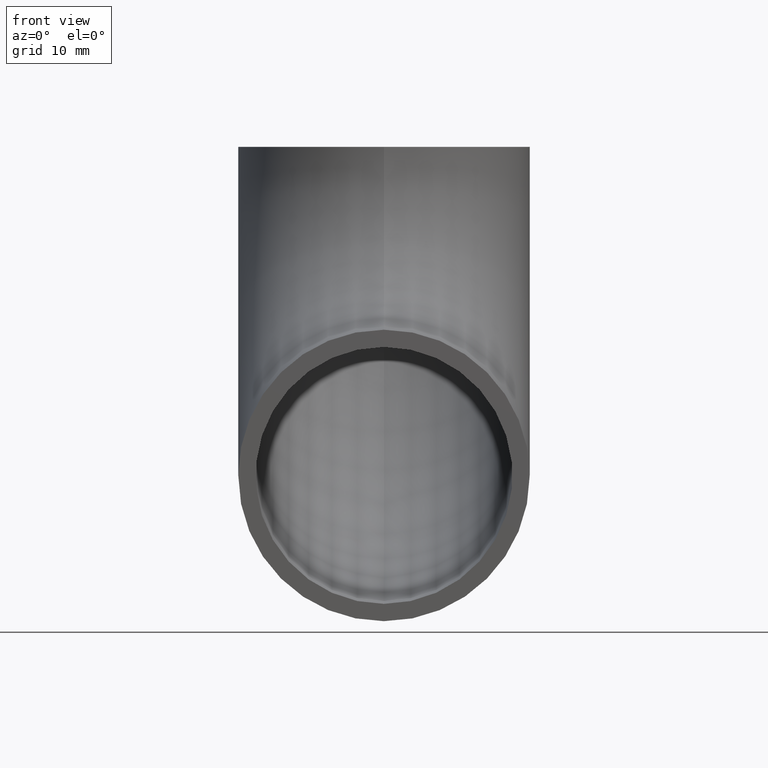
[diagram: clean part render]
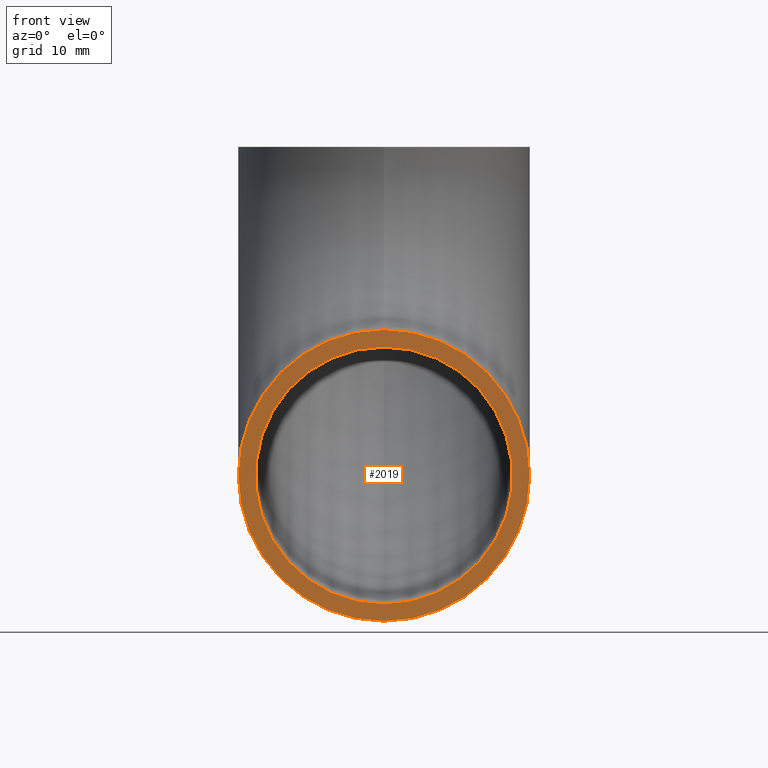
[diagram: same view with one face highlighted and labeled with its STEP entity id]
A machine part, front view. The second image highlights one B-rep face of the part: STEP entity #2019.
In plain terms, the highlighted planar face has unit normal (0, 1, 0).
Its self-contained STEP definition (entity closure, byte-faithful):
#232 = DIRECTION ( 'NONE',  ( 0.0000000000000000000, 0.0000000000000000000, 1.000000000000000000 ) ) ;
#257 = VERTEX_POINT ( 'NONE', #2974 ) ;
#288 = AXIS2_PLACEMENT_3D ( 'NONE', #10415, #3163, #11402 ) ;
#322 = EDGE_CURVE ( 'NONE', #1440, #1606, #9752, .T. ) ;
#482 = EDGE_CURVE ( 'NONE', #1606, #1440, #6144, .T. ) ;
#566 = ORIENTED_EDGE ( 'NONE', *, *, #4424, .T. ) ;
#636 = EDGE_LOOP ( 'NONE', ( #7633, #4150 ) ) ;
#962 = CARTESIAN_POINT ( 'NONE',  ( 0.0000000000000000000, 0.0000000000000000000, -54.84999999999999400 ) ) ;
#1064 = AXIS2_PLACEMENT_3D ( 'NONE', #2354, #8813, #11608 ) ;
#1433 = AXIS2_PLACEMENT_3D ( 'NONE', #7321, #8281, #9137 ) ;
#1440 = VERTEX_POINT ( 'NONE', #4458 ) ;
#1606 = VERTEX_POINT ( 'NONE', #962 ) ;
#2019 = ADVANCED_FACE ( 'NONE', ( #6993, #7850 ), #8418, .F. ) ;
#2354 = CARTESIAN_POINT ( 'NONE',  ( 0.0000000000000000000, 0.0000000000000000000, -38.00000000000000000 ) ) ;
#2832 = AXIS2_PLACEMENT_3D ( 'NONE', #4789, #10423, #232 ) ;
#2974 = CARTESIAN_POINT ( 'NONE',  ( 0.0000000000000000000, 0.0000000000000000000, -52.85000000000000100 ) ) ;
#3002 = CARTESIAN_POINT ( 'NONE',  ( 0.0000000000000000000, 0.0000000000000000000, -23.14999999999999900 ) ) ;
#3101 = EDGE_LOOP ( 'NONE', ( #3723, #566 ) ) ;
#3163 = DIRECTION ( 'NONE',  ( 0.0000000000000000000, 1.000000000000000000, 0.0000000000000000000 ) ) ;
#3723 = ORIENTED_EDGE ( 'NONE', *, *, #6148, .T. ) ;
#3944 = DIRECTION ( 'NONE',  ( 0.0000000000000000000, -0.0000000000000000000, 1.000000000000000000 ) ) ;
#4150 = ORIENTED_EDGE ( 'NONE', *, *, #482, .F. ) ;
#4424 = EDGE_CURVE ( 'NONE', #257, #10151, #9448, .T. ) ;
#4458 = CARTESIAN_POINT ( 'NONE',  ( 0.0000000000000000000, 0.0000000000000000000, -21.14999999999999900 ) ) ;
#4763 = AXIS2_PLACEMENT_3D ( 'NONE', #7609, #9442, #3944 ) ;
#4789 = CARTESIAN_POINT ( 'NONE',  ( 0.0000000000000000000, 0.0000000000000000000, -38.00000000000000000 ) ) ;
#6144 = CIRCLE ( 'NONE', #1433, 16.85000000000000100 ) ;
#6148 = EDGE_CURVE ( 'NONE', #10151, #257, #11744, .T. ) ;
#6993 = FACE_BOUND ( 'NONE', #3101, .T. ) ;
#7321 = CARTESIAN_POINT ( 'NONE',  ( 0.0000000000000000000, 0.0000000000000000000, -38.00000000000000000 ) ) ;
#7609 = CARTESIAN_POINT ( 'NONE',  ( 0.0000000000000000000, 0.0000000000000000000, -38.00000000000000000 ) ) ;
#7633 = ORIENTED_EDGE ( 'NONE', *, *, #322, .F. ) ;
#7850 = FACE_OUTER_BOUND ( 'NONE', #636, .T. ) ;
#8281 = DIRECTION ( 'NONE',  ( 0.0000000000000000000, 1.000000000000000000, 0.0000000000000000000 ) ) ;
#8418 = PLANE ( 'NONE',  #4763 ) ;
#8813 = DIRECTION ( 'NONE',  ( 0.0000000000000000000, 1.000000000000000000, 0.0000000000000000000 ) ) ;
#9137 = DIRECTION ( 'NONE',  ( 0.0000000000000000000, 0.0000000000000000000, 1.000000000000000000 ) ) ;
#9442 = DIRECTION ( 'NONE',  ( 0.0000000000000000000, 1.000000000000000000, 0.0000000000000000000 ) ) ;
#9448 = CIRCLE ( 'NONE', #2832, 14.85000000000000100 ) ;
#9752 = CIRCLE ( 'NONE', #1064, 16.85000000000000100 ) ;
#10151 = VERTEX_POINT ( 'NONE', #3002 ) ;
#10415 = CARTESIAN_POINT ( 'NONE',  ( 0.0000000000000000000, 0.0000000000000000000, -38.00000000000000000 ) ) ;
#10423 = DIRECTION ( 'NONE',  ( 0.0000000000000000000, 1.000000000000000000, 0.0000000000000000000 ) ) ;
#11402 = DIRECTION ( 'NONE',  ( 0.0000000000000000000, 0.0000000000000000000, 1.000000000000000000 ) ) ;
#11608 = DIRECTION ( 'NONE',  ( 0.0000000000000000000, 0.0000000000000000000, 1.000000000000000000 ) ) ;
#11744 = CIRCLE ( 'NONE', #288, 14.85000000000000100 ) ;